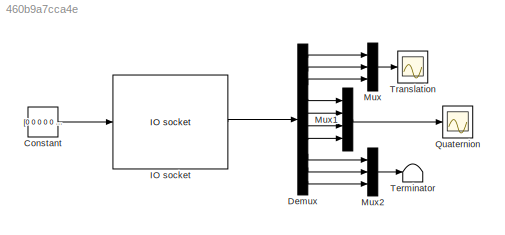
MODEL slx_460b9a7cca4e
KIND model
CONFIG AbsTol = auto
CONFIG EnableMultiTasking = off
CONFIG FixedStep = auto
CONFIG MaxStep = auto
CONFIG MinStep = auto
CONFIG RelTol = 1e-3
CONFIG SampleTimeConstraint = Unconstrained
CONFIG Solver = FixedStepDiscrete
CONFIG SolverName = FixedStepDiscrete
CONFIG StartTime = 0.0
CONFIG StopTime = Inf
BLOCK [Constant] Constant
  SampleTime = 0.01
  Value = [0 0 0 0 0 0 0 0 0 0]
BLOCK [Demux] Demux
  DisplayOption = bar
  Outputs = 10
  Ports = [1, 10]
BLOCK [Reference] IO socket  REF=rpi_blkst/IO socket  (lib defined in mdl_5f9edbe601a8, slx_830431f926a7)
  Ports = [1, 1]
  SourceBlock = rpi_blkst/IO socket
  SourceProductName = RPI Blockset
  SourceType = IO socket
BLOCK [Mux] Mux
  DisplayOption = bar
  Inputs = 3
  Ports = [3, 1]
BLOCK [Mux] Mux1
  DisplayOption = bar
  Ports = [4, 1]
BLOCK [Mux] Mux2
  DisplayOption = bar
  Inputs = 3
  Ports = [3, 1]
BLOCK [Scope] Quaternion
  Floating = off
  NumInputPorts = 1
  Ports = [1]
  ScopeSpecificationString = Simulink.scopes.TimeScopeBlockCfg('CurrentConfiguration', extmgr.ConfigurationSet(extmgr.Configuration('Core','General UI',true),extmgr.Configuration('Core','Source UI',true),extmgr.Configuration('Sources','WiredSimulink',true,'DataLoggingVariableName','ScopeData1'),extmgr.Configuration('Visuals','Time Domain',true),extmgr.Configuration('Tools','Plot Navigation',true),extmgr.Configuration('Tools',...<+58ch>
BLOCK [Terminator] Terminator
BLOCK [Scope] Translation
  Floating = off
  NumInputPorts = 1
  Ports = [1]
  ScopeSpecificationString = Simulink.scopes.TimeScopeBlockCfg('CurrentConfiguration', extmgr.ConfigurationSet(extmgr.Configuration('Core','General UI',true),extmgr.Configuration('Core','Source UI',true),extmgr.Configuration('Sources','WiredSimulink',true),extmgr.Configuration('Visuals','Time Domain',true,'SerializedDisplays',{struct('MinYLimReal','-0.08723','MaxYLimReal','0.23479','YLabelReal','','MinYLimMag','0.00000','MaxY...<+1398ch>
LINE Constant:1 -> IO socket:1
LINE Demux:1 -> Mux:1
LINE Demux:10 -> Mux2:3
LINE Demux:2 -> Mux:2
LINE Demux:3 -> Mux:3
LINE Demux:4 -> Mux1:1
LINE Demux:5 -> Mux1:2
LINE Demux:6 -> Mux1:3
LINE Demux:7 -> Mux1:4
LINE Demux:8 -> Mux2:1
LINE Demux:9 -> Mux2:2
LINE IO socket:1 -> Demux:1
LINE Mux1:1 -> Quaternion:1
LINE Mux2:1 -> Terminator:1
LINE Mux:1 -> Translation:1
